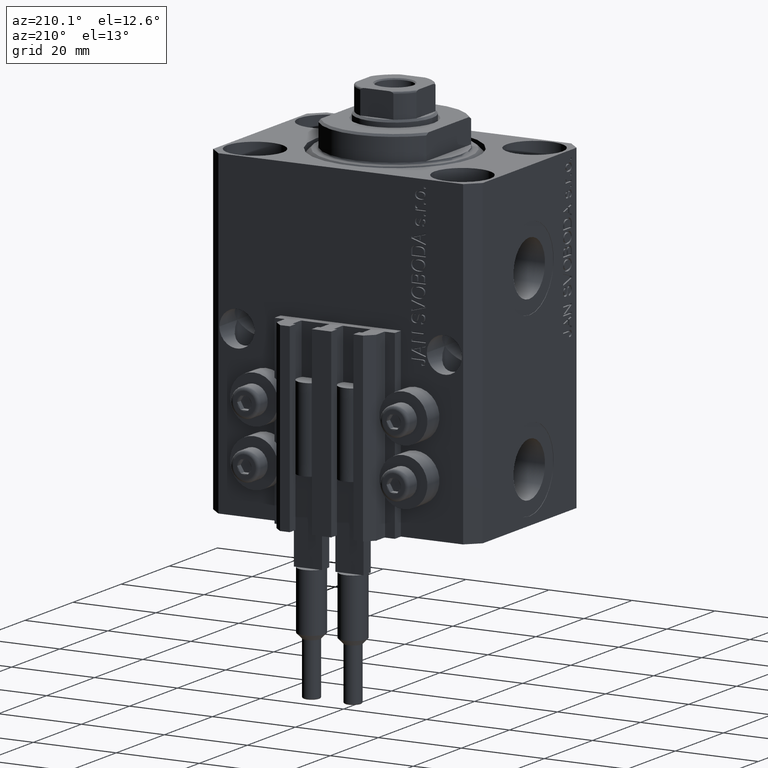
[diagram: clean part render]
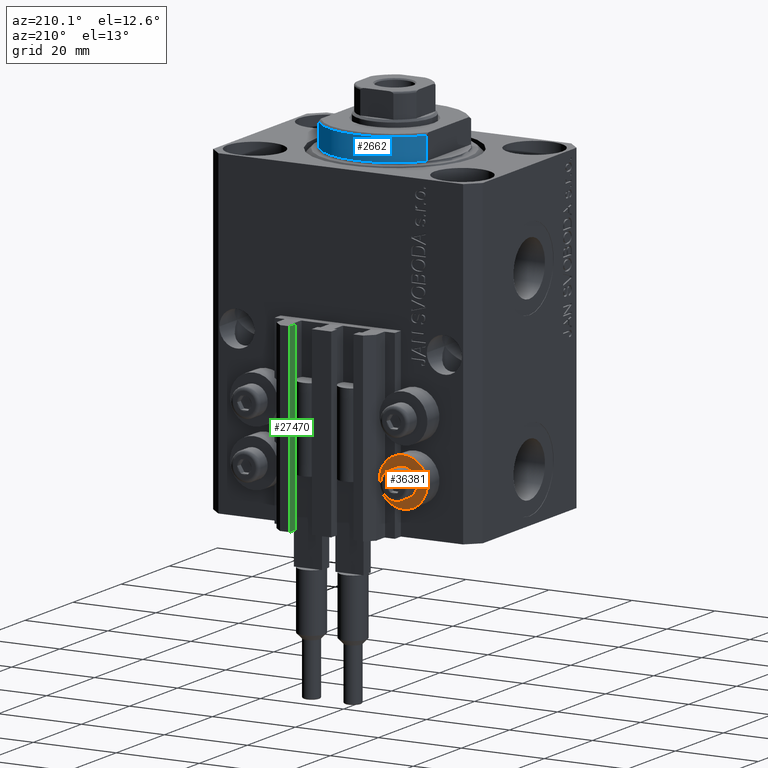
[diagram: same view with three faces highlighted in distinct colors, each labeled with its STEP entity id]
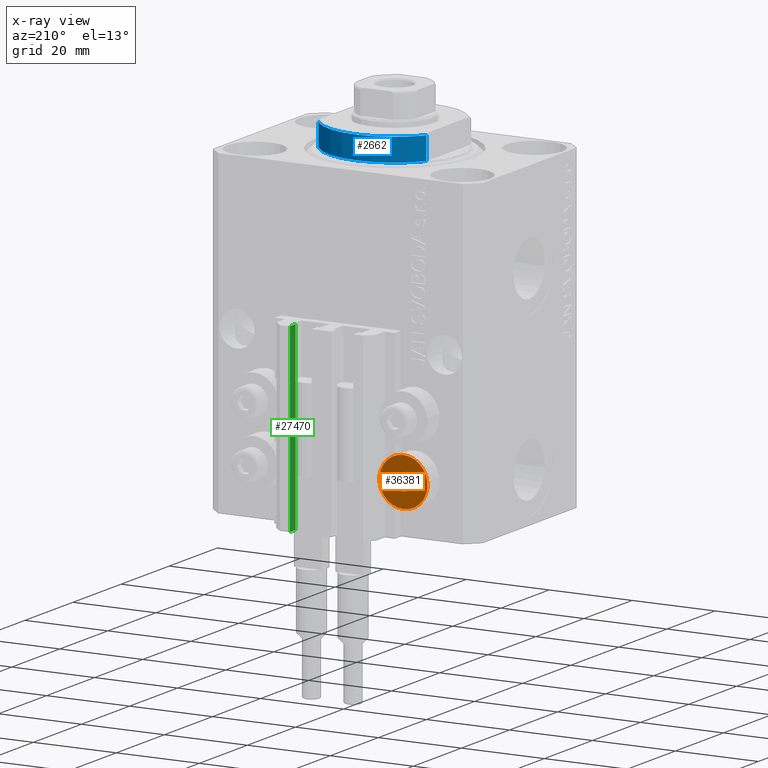
[diagram: x-ray of the same camera — body ghosted, the three highlighted faces saturated]
A machine part, auxiliary view with three faces highlighted in distinct colors.
The next image is the same camera in x-ray (body ghosted, the three faces saturated) — at least one of them is partly hidden behind the body in this view.
Their STEP definitions:

[orange] entity #36381 — the highlighted planar face has unit normal (0, -1, 0).
#520 = ORIENTED_EDGE ( 'NONE', *, *, #8091, .T. ) ;
#1996 = AXIS2_PLACEMENT_3D ( 'NONE', #14874, #3723, #7363 ) ;
#2229 = EDGE_CURVE ( 'NONE', #30721, #11013, #20099, .T. ) ;
#2389 = CIRCLE ( 'NONE', #29505, 2.000000000000001776 ) ;
#3723 = DIRECTION ( 'NONE',  ( -0.000000000000000000, -1.000000000000000000, -0.000000000000000000 ) ) ;
#4949 = EDGE_LOOP ( 'NONE', ( #520, #46603 ) ) ;
#7363 = DIRECTION ( 'NONE',  ( 0.000000000000000000, 0.000000000000000000, -1.000000000000000000 ) ) ;
#7883 = DIRECTION ( 'NONE',  ( 0.000000000000000000, 0.000000000000000000, -1.000000000000000000 ) ) ;
#8091 = EDGE_CURVE ( 'NONE', #21322, #26784, #2389, .T. ) ;
#11013 = VERTEX_POINT ( 'NONE', #25210 ) ;
#12325 = CARTESIAN_POINT ( 'NONE',  ( -18.00000000000000355, 27.49999999996051514, -64.00000000000000000 ) ) ;
#14874 = CARTESIAN_POINT ( 'NONE',  ( -18.00000000000000355, 27.49999999996051514, -64.00000000000000000 ) ) ;
#16341 = PLANE ( 'NONE',  #37608 ) ;
#18248 = CIRCLE ( 'NONE', #1996, 5.799999999999999822 ) ;
#19603 = DIRECTION ( 'NONE',  ( 0.000000000000000000, 0.000000000000000000, -1.000000000000000000 ) ) ;
#19807 = AXIS2_PLACEMENT_3D ( 'NONE', #36806, #32919, #29507 ) ;
#19984 = CARTESIAN_POINT ( 'NONE',  ( -18.00000000000000355, 27.49999999996051514, -62.00000000000000000 ) ) ;
#20099 = CIRCLE ( 'NONE', #37968, 5.799999999999999822 ) ;
#20604 = EDGE_LOOP ( 'NONE', ( #25573, #37533 ) ) ;
#21322 = VERTEX_POINT ( 'NONE', #19984 ) ;
#22774 = DIRECTION ( 'NONE',  ( -0.000000000000000000, -1.000000000000000000, -0.000000000000000000 ) ) ;
#22897 = CIRCLE ( 'NONE', #19807, 2.000000000000001776 ) ;
#24821 = DIRECTION ( 'NONE',  ( 0.000000000000000000, 0.000000000000000000, 1.000000000000000000 ) ) ;
#24851 = CARTESIAN_POINT ( 'NONE',  ( -18.00000000000000355, 27.49999999996051514, -69.79999999999999716 ) ) ;
#25210 = CARTESIAN_POINT ( 'NONE',  ( -18.00000000000000355, 27.49999999996051514, -58.20000000000000284 ) ) ;
#25573 = ORIENTED_EDGE ( 'NONE', *, *, #2229, .F. ) ;
#26784 = VERTEX_POINT ( 'NONE', #45173 ) ;
#29505 = AXIS2_PLACEMENT_3D ( 'NONE', #12325, #22774, #19603 ) ;
#29507 = DIRECTION ( 'NONE',  ( 0.000000000000000000, 0.000000000000000000, -1.000000000000000000 ) ) ;
#29968 = CARTESIAN_POINT ( 'NONE',  ( -18.00000000000000355, 27.49999999996051514, -64.00000000000000000 ) ) ;
#30721 = VERTEX_POINT ( 'NONE', #24851 ) ;
#31181 = CARTESIAN_POINT ( 'NONE',  ( -12.20000000000000284, 27.49999999996051514, -64.00000000000000000 ) ) ;
#32919 = DIRECTION ( 'NONE',  ( -0.000000000000000000, -1.000000000000000000, -0.000000000000000000 ) ) ;
#34802 = FACE_OUTER_BOUND ( 'NONE', #20604, .T. ) ;
#36381 = ADVANCED_FACE ( 'NONE', ( #42097, #34802 ), #16341, .F. ) ;
#36806 = CARTESIAN_POINT ( 'NONE',  ( -18.00000000000000355, 27.49999999996051514, -64.00000000000000000 ) ) ;
#37323 = EDGE_CURVE ( 'NONE', #11013, #30721, #18248, .T. ) ;
#37533 = ORIENTED_EDGE ( 'NONE', *, *, #37323, .F. ) ;
#37608 = AXIS2_PLACEMENT_3D ( 'NONE', #31181, #45986, #24821 ) ;
#37968 = AXIS2_PLACEMENT_3D ( 'NONE', #29968, #41135, #7883 ) ;
#38274 = EDGE_CURVE ( 'NONE', #26784, #21322, #22897, .T. ) ;
#41135 = DIRECTION ( 'NONE',  ( -0.000000000000000000, -1.000000000000000000, -0.000000000000000000 ) ) ;
#42097 = FACE_BOUND ( 'NONE', #4949, .T. ) ;
#45173 = CARTESIAN_POINT ( 'NONE',  ( -18.00000000000000355, 27.49999999996051514, -66.00000000000000000 ) ) ;
#45986 = DIRECTION ( 'NONE',  ( 0.000000000000000000, -1.000000000000000000, 0.000000000000000000 ) ) ;
#46603 = ORIENTED_EDGE ( 'NONE', *, *, #38274, .T. ) ;

[blue] entity #2662 — the highlighted cylindrical surface (partial cylindrical patch) has radius 16 mm, axis along (0, 0, -1).
#320 = DIRECTION ( 'NONE',  ( -0.000000000000000000, -0.000000000000000000, -1.000000000000000000 ) ) ;
#2662 = ADVANCED_FACE ( 'NONE', ( #19778 ), #5002, .T. ) ;
#3109 = EDGE_LOOP ( 'NONE', ( #25106, #41352, #26189, #40631 ) ) ;
#5002 = CYLINDRICAL_SURFACE ( 'NONE', #38733, 16.00000000000000000 ) ;
#5703 = CARTESIAN_POINT ( 'NONE',  ( -13.00000000000000000, 9.327379053088815652, -0.4999999999999995559 ) ) ;
#9341 = DIRECTION ( 'NONE',  ( -0.000000000000000000, -0.000000000000000000, 1.000000000000000000 ) ) ;
#9377 = DIRECTION ( 'NONE',  ( -0.000000000000000000, -0.000000000000000000, 1.000000000000000000 ) ) ;
#9958 = CARTESIAN_POINT ( 'NONE',  ( 13.00000000000000000, 9.327379053088916905, -6.000000000000014211 ) ) ;
#10168 = CIRCLE ( 'NONE', #22558, 16.00000000000000000 ) ;
#12949 = CARTESIAN_POINT ( 'NONE',  ( -13.00000000000000000, 9.327379053088813876, -6.500000000000000000 ) ) ;
#14202 = VERTEX_POINT ( 'NONE', #45699 ) ;
#19352 = VECTOR ( 'NONE', #24826, 1000.000000000000000 ) ;
#19778 = FACE_OUTER_BOUND ( 'NONE', #3109, .T. ) ;
#19918 = DIRECTION ( 'NONE',  ( -1.000000000000000000, 0.000000000000000000, 0.000000000000000000 ) ) ;
#21419 = DIRECTION ( 'NONE',  ( 1.000000000000000000, -8.881784197001252323E-16, 0.000000000000000000 ) ) ;
#22558 = AXIS2_PLACEMENT_3D ( 'NONE', #38627, #24038, #19918 ) ;
#23217 = AXIS2_PLACEMENT_3D ( 'NONE', #36006, #320, #21419 ) ;
#24038 = DIRECTION ( 'NONE',  ( 0.000000000000000000, 0.000000000000000000, 1.000000000000000000 ) ) ;
#24348 = LINE ( 'NONE', #12949, #19352 ) ;
#24514 = EDGE_CURVE ( 'NONE', #38955, #14202, #10168, .T. ) ;
#24826 = DIRECTION ( 'NONE',  ( -0.000000000000000000, -0.000000000000000000, 1.000000000000000000 ) ) ;
#25106 = ORIENTED_EDGE ( 'NONE', *, *, #46442, .F. ) ;
#26189 = ORIENTED_EDGE ( 'NONE', *, *, #46794, .T. ) ;
#29421 = VECTOR ( 'NONE', #9377, 1000.000000000000000 ) ;
#30069 = VERTEX_POINT ( 'NONE', #5703 ) ;
#34838 = CARTESIAN_POINT ( 'NONE',  ( 0.000000000000000000, 0.000000000000000000, -6.500000000000000000 ) ) ;
#35838 = LINE ( 'NONE', #47231, #29421 ) ;
#36006 = CARTESIAN_POINT ( 'NONE',  ( 0.000000000000000000, 0.000000000000000000, -0.4999999999999995559 ) ) ;
#36247 = CARTESIAN_POINT ( 'NONE',  ( 13.00000000000000000, 9.327379053088815652, -0.4999999999999995559 ) ) ;
#36408 = VERTEX_POINT ( 'NONE', #36247 ) ;
#38257 = DIRECTION ( 'NONE',  ( 1.000000000000000000, 0.000000000000000000, 0.000000000000000000 ) ) ;
#38627 = CARTESIAN_POINT ( 'NONE',  ( 0.000000000000000000, 0.000000000000000000, -6.000000000000023981 ) ) ;
#38733 = AXIS2_PLACEMENT_3D ( 'NONE', #34838, #9341, #38257 ) ;
#38955 = VERTEX_POINT ( 'NONE', #9958 ) ;
#40631 = ORIENTED_EDGE ( 'NONE', *, *, #46015, .T. ) ;
#41352 = ORIENTED_EDGE ( 'NONE', *, *, #24514, .T. ) ;
#45699 = CARTESIAN_POINT ( 'NONE',  ( -13.00000000000000000, 9.327379053088916905, -6.000000000000014211 ) ) ;
#45716 = CIRCLE ( 'NONE', #23217, 16.00000000000000000 ) ;
#46015 = EDGE_CURVE ( 'NONE', #30069, #36408, #45716, .T. ) ;
#46442 = EDGE_CURVE ( 'NONE', #38955, #36408, #35838, .T. ) ;
#46794 = EDGE_CURVE ( 'NONE', #14202, #30069, #24348, .T. ) ;
#47231 = CARTESIAN_POINT ( 'NONE',  ( 13.00000000000000000, 9.327379053088813876, -6.500000000000000000 ) ) ;

[green] entity #27470 — the highlighted planar face has unit normal (-1, -0, 0).
#5683 = EDGE_CURVE ( 'NONE', #37072, #46779, #35842, .T. ) ;
#9253 = VECTOR ( 'NONE', #27681, 1000.000000000000000 ) ;
#9379 = VECTOR ( 'NONE', #20765, 1000.000000000000000 ) ;
#10325 = CARTESIAN_POINT ( 'NONE',  ( 7.649999999999995026, 30.49999999999949196, -77.00000000000000000 ) ) ;
#11073 = VECTOR ( 'NONE', #14760, 1000.000000000000000 ) ;
#13504 = ORIENTED_EDGE ( 'NONE', *, *, #45101, .F. ) ;
#13949 = LINE ( 'NONE', #10325, #9253 ) ;
#14760 = DIRECTION ( 'NONE',  ( 3.614007241618365534E-16, -1.000000000000000000, 0.000000000000000000 ) ) ;
#17125 = CARTESIAN_POINT ( 'NONE',  ( 7.649999999999995914, 28.09999999999950404, -77.00000000000000000 ) ) ;
#20765 = DIRECTION ( 'NONE',  ( 0.000000000000000000, 0.000000000000000000, 1.000000000000000000 ) ) ;
#21548 = CARTESIAN_POINT ( 'NONE',  ( 7.649999999999995914, 28.09999999999950404, -77.00000000000000000 ) ) ;
#22279 = CARTESIAN_POINT ( 'NONE',  ( 7.649999999999995026, 30.49999999999949196, -33.00000000000000000 ) ) ;
#25694 = LINE ( 'NONE', #22279, #11073 ) ;
#26144 = LINE ( 'NONE', #40965, #44152 ) ;
#26910 = EDGE_CURVE ( 'NONE', #39964, #46779, #25694, .T. ) ;
#27311 = ORIENTED_EDGE ( 'NONE', *, *, #26910, .F. ) ;
#27470 = ADVANCED_FACE ( 'NONE', ( #46125 ), #30597, .T. ) ;
#27681 = DIRECTION ( 'NONE',  ( 0.000000000000000000, 0.000000000000000000, 1.000000000000000000 ) ) ;
#28931 = EDGE_LOOP ( 'NONE', ( #27311, #13504, #37181, #31592 ) ) ;
#29425 = CARTESIAN_POINT ( 'NONE',  ( 7.649999999999995026, 30.49999999999949196, -33.00000000000000000 ) ) ;
#30597 = PLANE ( 'NONE',  #42845 ) ;
#31081 = DIRECTION ( 'NONE',  ( -1.000000000000000000, -3.614007241618365534E-16, 0.000000000000000000 ) ) ;
#31592 = ORIENTED_EDGE ( 'NONE', *, *, #5683, .T. ) ;
#34715 = CARTESIAN_POINT ( 'NONE',  ( 7.649999999999995026, 30.49999999999949196, -77.00000000000000000 ) ) ;
#35842 = LINE ( 'NONE', #17125, #9379 ) ;
#36285 = VERTEX_POINT ( 'NONE', #38456 ) ;
#37072 = VERTEX_POINT ( 'NONE', #21548 ) ;
#37181 = ORIENTED_EDGE ( 'NONE', *, *, #46398, .T. ) ;
#38456 = CARTESIAN_POINT ( 'NONE',  ( 7.649999999999995026, 30.49999999999949196, -77.00000000000000000 ) ) ;
#39964 = VERTEX_POINT ( 'NONE', #29425 ) ;
#40965 = CARTESIAN_POINT ( 'NONE',  ( 7.649999999999995026, 30.49999999999949196, -77.00000000000000000 ) ) ;
#42165 = DIRECTION ( 'NONE',  ( 3.614007241618365534E-16, -1.000000000000000000, 0.000000000000000000 ) ) ;
#42845 = AXIS2_PLACEMENT_3D ( 'NONE', #34715, #31081, #45415 ) ;
#44152 = VECTOR ( 'NONE', #42165, 1000.000000000000000 ) ;
#45101 = EDGE_CURVE ( 'NONE', #36285, #39964, #13949, .T. ) ;
#45415 = DIRECTION ( 'NONE',  ( 3.614007241618365534E-16, -1.000000000000000000, 0.000000000000000000 ) ) ;
#45992 = CARTESIAN_POINT ( 'NONE',  ( 7.649999999999995914, 28.09999999999950404, -33.00000000000000000 ) ) ;
#46125 = FACE_OUTER_BOUND ( 'NONE', #28931, .T. ) ;
#46398 = EDGE_CURVE ( 'NONE', #36285, #37072, #26144, .T. ) ;
#46779 = VERTEX_POINT ( 'NONE', #45992 ) ;